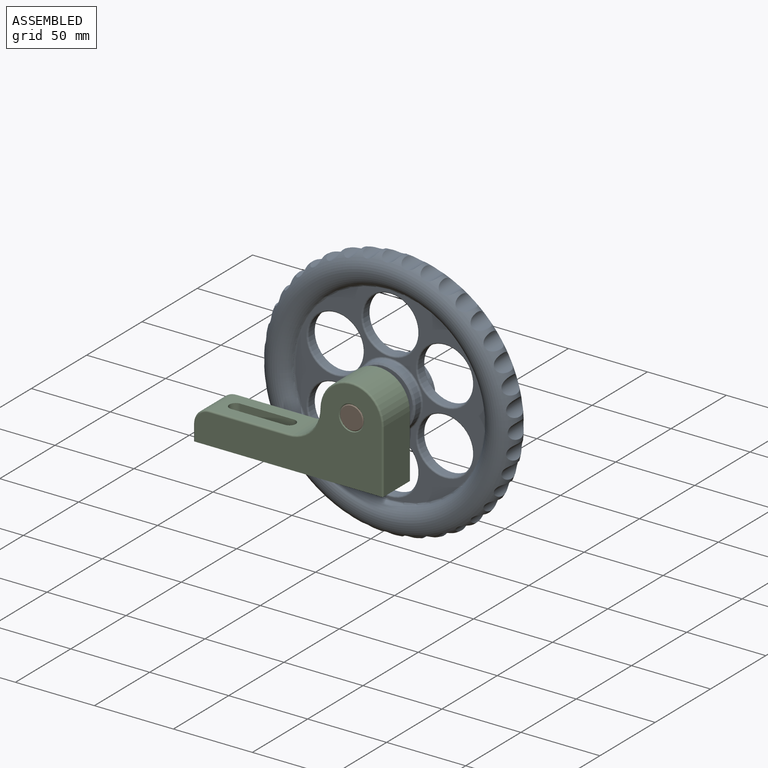
[diagram: assembled view]
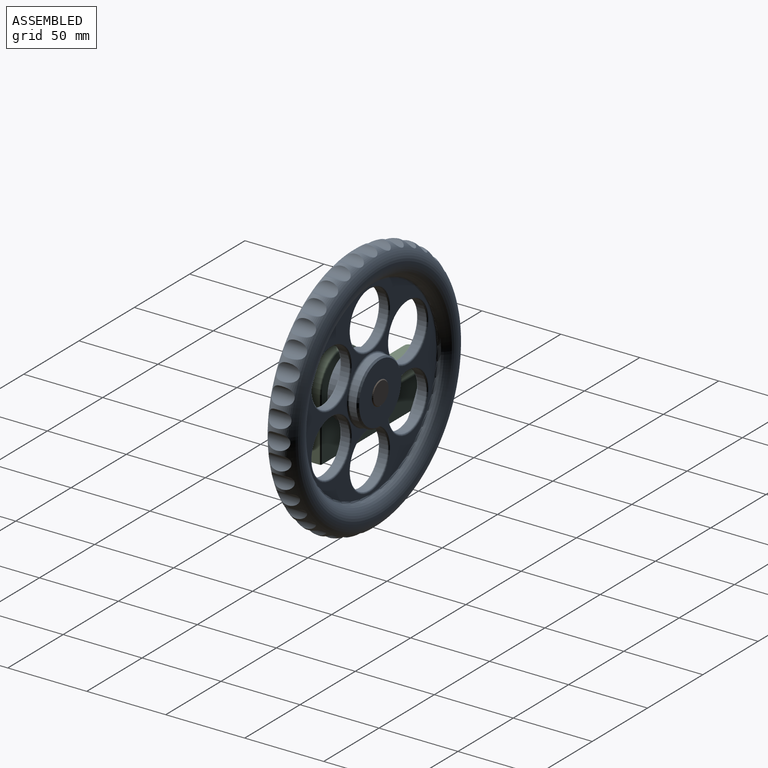
[diagram: assembled view, second angle]
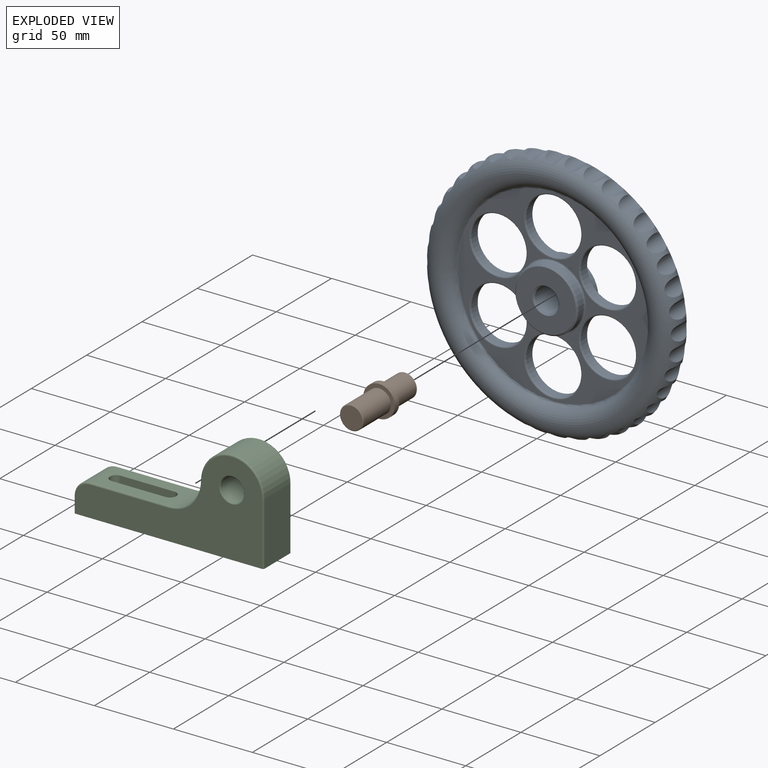
[diagram: exploded view]
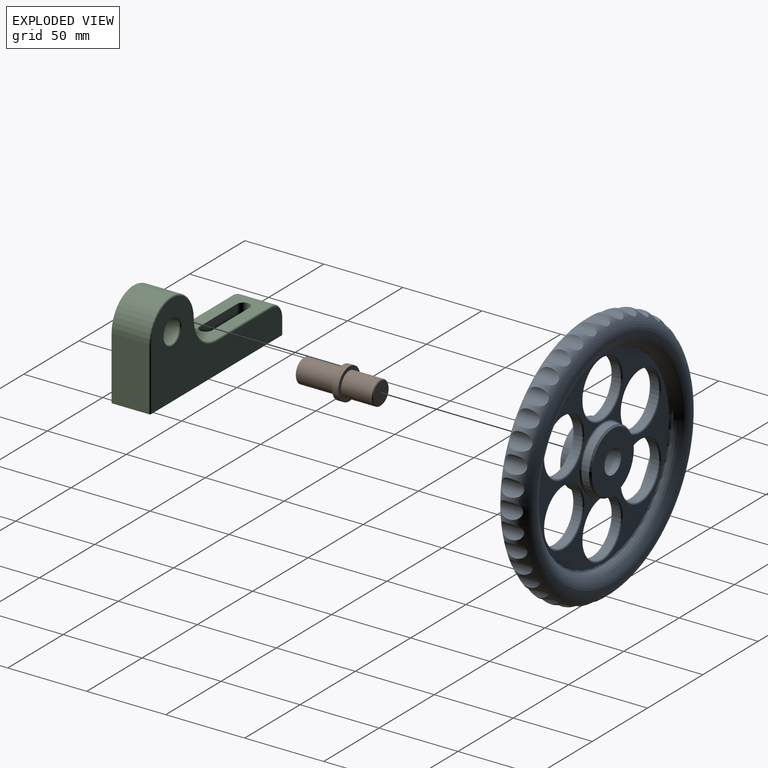
[diagram: exploded view, second angle]
ASSEMBLY  parts=3 mates=2
PART A: 73 faces, bbox 173.2x20x173.2 mm
  f0: torus R=70mm, axis (0,-1,0), area 19230.8mm2, adj f21,f29,f33,f34,f35,f36,f37,f38
  f1: plane 119.93x119.93mm, normal (0,-1,0), area 3458.9mm2, adj f14,f15,f16,f17,f18,f19,f20,f21
  f2: cylinder r=20mm len=40mm, axis (0,-1,0), area 565.5mm2, adj f20,f30
  f3: plane 38x38mm, normal (0,-1,0), area 907.1mm2, adj f30,f31
  f4: cylinder r=7.5mm len=19mm, axis (0,-1,0), area 895.4mm2, adj f5,f31
  f5: plane 38x38mm, normal (0,1,0), area 957.4mm2, adj f4,f32
  f6: cylinder r=20mm len=40mm, axis (0,-1,0), area 565.5mm2, adj f28,f32
  f7: plane 119.93x119.93mm, normal (0,1,0), area 3458.9mm2, adj f22,f23,f24,f25,f26,f27,f28,f29
  f8: cylinder r=17.5mm len=35mm, axis (0,-1,0), area 549.8mm2, adj f19,f27
  f9: cylinder r=17.5mm len=35mm, axis (0,-1,0), area 549.8mm2, adj f14,f26
  f10: cylinder r=17.5mm len=35mm, axis (0,-1,0), area 549.8mm2, adj f18,f25
  f11: cylinder r=17.5mm len=35mm, axis (0,-1,0), area 549.8mm2, adj f17,f24
  f12: cylinder r=17.5mm len=35mm, axis (0,-1,0), area 549.8mm2, adj f15,f23
  f13: cylinder r=17.5mm len=35mm, axis (0,-1,0), area 549.8mm2, adj f16,f22
  f14: torus R=18.5mm, axis (0,1,0), area 176.3mm2, adj f1,f9
  f15: torus R=18.5mm, axis (0,1,0), area 176.3mm2, adj f1,f12
  f16: torus R=18.5mm, axis (0,1,0), area 176.3mm2, adj f1,f13
  f17: torus R=18.5mm, axis (0,1,0), area 176.3mm2, adj f1,f11
  f18: torus R=18.5mm, axis (0,1,0), area 176.3mm2, adj f1,f10
  f19: torus R=18.5mm, axis (0,1,0), area 176.3mm2, adj f1,f8
  f20: torus R=21mm, axis (0,1,0), area 201mm2, adj f1,f2
  f21: torus R=59.96mm, axis (0,-1,0), area 436.7mm2, adj f0,f1
  f22: torus R=18.5mm, axis (0,-1,0), area 176.3mm2, adj f7,f13
  f23: torus R=18.5mm, axis (0,-1,0), area 176.3mm2, adj f7,f12
  f24: torus R=18.5mm, axis (0,-1,0), area 176.3mm2, adj f7,f11
  f25: torus R=18.5mm, axis (0,-1,0), area 176.3mm2, adj f7,f10
  f26: torus R=18.5mm, axis (0,-1,0), area 176.3mm2, adj f7,f9
  f27: torus R=18.5mm, axis (0,-1,0), area 176.3mm2, adj f7,f8
  f28: torus R=21mm, axis (0,-1,0), area 201mm2, adj f6,f7
  f29: torus R=59.96mm, axis (0,1,0), area 436.7mm2, adj f0,f7
  f30: cone r=19mm half-angle=45deg, axis (0,1,0), area 173.3mm2, adj f2,f3
  f31: cone r=7.5mm half-angle=45deg, axis (0,-1,0), area 71.1mm2, adj f3,f4
  f32: cone r=20mm half-angle=45deg, axis (0,-1,0), area 173.3mm2, adj f5,f6
  f33: cylinder r=6mm len=14.28mm, axis (0,1,0), area 137.9mm2, adj f0
  f34: cylinder r=6mm len=14.28mm, axis (0,1,0), area 137.8mm2, adj f0
  f35: cylinder r=6mm len=14.28mm, axis (0,1,0), area 137.9mm2, adj f0
  f36: cylinder r=6mm len=14.28mm, axis (0,1,0), area 137.9mm2, adj f0
  f37: cylinder r=6mm len=14.28mm, axis (0,1,0), area 137.8mm2, adj f0
  f38: cylinder r=6mm len=14.29mm, axis (0,1,0), area 137.9mm2, adj f0
  f39: cylinder r=6mm len=14.28mm, axis (0,1,0), area 137.8mm2, adj f0
  f40: cylinder r=6mm len=14.28mm, axis (0,1,0), area 137.8mm2, adj f0
  f41: cylinder r=6mm len=14.28mm, axis (0,1,0), area 137.9mm2, adj f0
  f42: cylinder r=6mm len=14.28mm, axis (0,1,0), area 137.9mm2, adj f0
  f43: cylinder r=6mm len=14.28mm, axis (0,1,0), area 137.9mm2, adj f0
  f44: cylinder r=6mm len=14.28mm, axis (0,1,0), area 137.9mm2, adj f0
  f45: cylinder r=6mm len=14.28mm, axis (0,1,0), area 137.9mm2, adj f0
  f46: cylinder r=6mm len=14.28mm, axis (0,1,0), area 137.9mm2, adj f0
  f47: cylinder r=6mm len=14.28mm, axis (0,1,0), area 137.8mm2, adj f0
  f48: cylinder r=6mm len=14.28mm, axis (0,1,0), area 137.9mm2, adj f0
  f49: cylinder r=6mm len=14.28mm, axis (0,1,0), area 137.8mm2, adj f0
  f50: cylinder r=6mm len=14.28mm, axis (0,1,0), area 137.9mm2, adj f0
  f51: cylinder r=6mm len=14.28mm, axis (0,1,0), area 137.9mm2, adj f0
  f52: cylinder r=6mm len=14.28mm, axis (0,1,0), area 137.9mm2, adj f0
  f53: cylinder r=6mm len=14.28mm, axis (0,1,0), area 137.8mm2, adj f0
  f54: cylinder r=6mm len=14.28mm, axis (0,1,0), area 137.9mm2, adj f0
  f55: cylinder r=6mm len=14.28mm, axis (0,1,0), area 137.8mm2, adj f0
  f56: cylinder r=6mm len=14.28mm, axis (0,1,0), area 137.9mm2, adj f0
  f57: cylinder r=6mm len=14.28mm, axis (0,1,0), area 137.8mm2, adj f0
  f58: cylinder r=6mm len=14.28mm, axis (0,1,0), area 137.9mm2, adj f0
  f59: cylinder r=6mm len=14.28mm, axis (0,1,0), area 137.9mm2, adj f0
  f60: cylinder r=6mm len=14.28mm, axis (0,1,0), area 137.8mm2, adj f0
  f61: cylinder r=6mm len=14.28mm, axis (0,1,0), area 137.9mm2, adj f0
  f62: cylinder r=6mm len=14.28mm, axis (0,1,0), area 137.8mm2, adj f0
  f63: cylinder r=6mm len=14.29mm, axis (0,1,0), area 137.8mm2, adj f0
  f64: cylinder r=6mm len=14.28mm, axis (0,1,0), area 137.9mm2, adj f0
  f65: cylinder r=6mm len=14.28mm, axis (0,1,0), area 137.8mm2, adj f0
  f66: cylinder r=6mm len=14.29mm, axis (0,1,0), area 137.8mm2, adj f0
  f67: cylinder r=6mm len=14.28mm, axis (0,1,0), area 137.8mm2, adj f0
  f68: cylinder r=6mm len=14.28mm, axis (0,1,0), area 137.9mm2, adj f0
  f69: cylinder r=6mm len=14.28mm, axis (0,1,0), area 137.9mm2, adj f0
  f70: cylinder r=6mm len=14.28mm, axis (0,1,0), area 137.8mm2, adj f0
  f71: cylinder r=6mm len=14.28mm, axis (0,1,0), area 137.8mm2, adj f0
  f72: cylinder r=6mm len=14.28mm, axis (0,1,0), area 137.8mm2, adj f0
PART B: 9 faces, bbox 49x20x20 mm
  f0: plane 14x14mm, normal (-1,0,0), area 153.9mm2, adj f7
  f1: plane 14x14mm, normal (1,0,0), area 153.9mm2, adj f8
  f2: cylinder r=7.5mm len=24.5mm, axis (1,0,0), area 1154.5mm2, adj f3,f8
  f3: plane 20x20mm, normal (1,0,0), area 137.4mm2, adj f2,f4
  f4: cylinder r=10mm len=20mm, axis (1,0,0), area 251.3mm2, adj f3,f5
  f5: plane 20x20mm, normal (-1,0,0), area 137.4mm2, adj f4,f6
  f6: cylinder r=7.5mm len=19.5mm, axis (1,0,0), area 918.9mm2, adj f5,f7
  f7: cone r=7.5mm half-angle=45deg, axis (1,0,0), area 32.2mm2, adj f0,f6
  f8: cone r=7mm half-angle=45deg, axis (-1,0,0), area 32.2mm2, adj f1,f2
PART C: 42 faces, bbox 122.5x25x61.6 mm
  f0: plane 120x25mm, normal (0,0,-1), area 563.1mm2, adj f3,f4,f8,f9,f15,f20,f21,f26
  f1: plane 46x12mm, normal (0,0,-1), area 198.8mm2, adj f11,f12,f13,f14,f36,f37,f38,f39
  f2: plane 50x23mm, normal (0,0,1), area 827.7mm2, adj f5,f6,f11,f12,f13,f14,f17,f24
  f3: plane 40x23mm, normal (-1,0,0), area 920mm2, adj f0,f7,f20,f21
  f4: plane 23x10mm, normal (1,0,0), area 230mm2, adj f0,f5,f15,f26
  f5: cylinder r=10mm len=23mm, axis (0,-1,0), area 361.3mm2, adj f2,f4,f16,f25
  f6: cylinder r=20mm len=23mm, axis (0,-1,0), area 722.6mm2, adj f2,f7,f18,f23
  f7: cylinder r=20mm len=40mm, axis (0,-1,0), area 1445.1mm2, adj f3,f6,f19,f22
  f8: plane 118x59mm, normal (0,1,0), area 3483.3mm2, adj f0,f15,f16,f17,f18,f19,f20,f40
  f9: plane 118x59mm, normal (0,-1,0), area 3483.3mm2, adj f0,f21,f22,f23,f24,f25,f26,f41
  f10: cylinder r=7.5mm len=24mm, axis (0,-1,0), area 1131mm2, adj f40,f41
  f11: plane 34x20mm, normal (0,-1,0), area 680mm2, adj f1,f2,f12,f14
  f12: cylinder r=4mm len=20mm, axis (0,0,1), area 251.3mm2, adj f1,f2,f11,f13
  f13: plane 34x20mm, normal (0,1,0), area 680mm2, adj f1,f2,f12,f14
  f14: cylinder r=4mm len=20mm, axis (0,0,1), area 251.3mm2, adj f1,f2,f11,f13
  f15: cylinder r=1mm len=10mm, axis (0,0,-1), area 15.7mm2, adj f0,f4,f8,f16
  f16: torus R=9mm, axis (0,-1,0), area 23.8mm2, adj f5,f8,f15,f17
  f17: cylinder r=1mm len=50mm, axis (1,0,0), area 78.5mm2, adj f2,f8,f16,f18
  f18: torus R=21mm, axis (0,-1,0), area 50.2mm2, adj f6,f8,f17,f19
  f19: torus R=19mm, axis (0,-1,0), area 96.9mm2, adj f7,f8,f18,f20
  f20: cylinder r=1mm len=40mm, axis (0,0,1), area 62.8mm2, adj f0,f3,f8,f19
  f21: cylinder r=1mm len=40mm, axis (0,0,-1), area 62.8mm2, adj f0,f3,f9,f22
  f22: torus R=19mm, axis (0,-1,0), area 96.9mm2, adj f7,f9,f21,f23
  f23: torus R=21mm, axis (0,-1,0), area 50.2mm2, adj f6,f9,f22,f24
  f24: cylinder r=1mm len=50mm, axis (-1,0,0), area 78.5mm2, adj f2,f9,f23,f25
  f25: torus R=9mm, axis (0,-1,0), area 23.8mm2, adj f5,f9,f24,f26
  f26: cylinder r=1mm len=10mm, axis (0,0,1), area 15.7mm2, adj f0,f4,f9,f25
  f27: plane 50x21mm, normal (0,0,-1), area 528.9mm2, adj f30,f31,f33,f34,f36,f37,f38,f39
  f28: plane 40x21mm, normal (1,0,0), area 840mm2, adj f0,f32,f33,f34
  f29: plane 21x10mm, normal (-1,0,0), area 210mm2, adj f0,f30,f33,f34
  f30: cylinder r=8mm len=21mm, axis (0,-1,0), area 263.9mm2, adj f27,f29,f33,f34
  f31: cylinder r=22mm len=22mm, axis (0,-1,0), area 725.7mm2, adj f27,f32,f33,f34
  f32: cylinder r=18mm len=36mm, axis (0,-1,0), area 1187.5mm2, adj f28,f31,f33,f34
  f33: plane 116x58mm, normal (0,-1,0), area 3195.5mm2, adj f0,f27,f28,f29,f30,f31,f32,f35
  f34: plane 116x58mm, normal (0,1,0), area 3195.5mm2, adj f0,f27,f28,f29,f30,f31,f32,f35
  f35: cylinder r=9.5mm len=21mm, axis (0,-1,0), area 1253.5mm2, adj f33,f34
  f36: plane 34x18mm, normal (0,1,0), area 612mm2, adj f1,f27,f37,f39
  f37: cylinder r=6mm len=18mm, axis (0,0,1), area 339.3mm2, adj f1,f27,f36,f38
  f38: plane 34x18mm, normal (0,-1,0), area 612mm2, adj f1,f27,f37,f39
  f39: cylinder r=6mm len=18mm, axis (0,0,1), area 339.3mm2, adj f1,f27,f36,f38
  f40: cone r=8mm half-angle=45deg, axis (0,1,0), area 34.4mm2, adj f8,f10
  f41: cone r=7.5mm half-angle=45deg, axis (0,-1,0), area 34.4mm2, adj f9,f10
PLACE A t=(-190.53,7.33,-15.94)mm
PLACE B rot(axis=(-0.58,0.58,-0.58),120deg) t=(-190.53,-0.34,-15.94)mm
PLACE C rot(axis=(0,0,1),180deg) t=(-239.7,-6.17,-55.94)mm
MATE revolute A.f0 <-> B.f2  axis (0,1,0) through (-190.53,17.33,-15.94)mm
MATE fastened C.f7 <-> B.f2  axis (0,1,0) through (-190.53,-6.17,-15.94)mm
